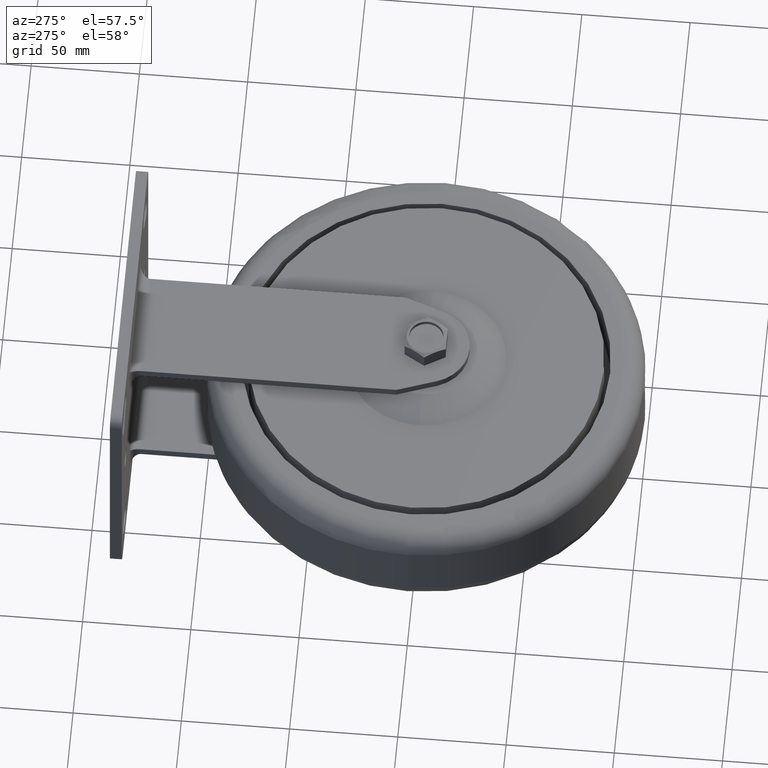
[diagram: clean part render]
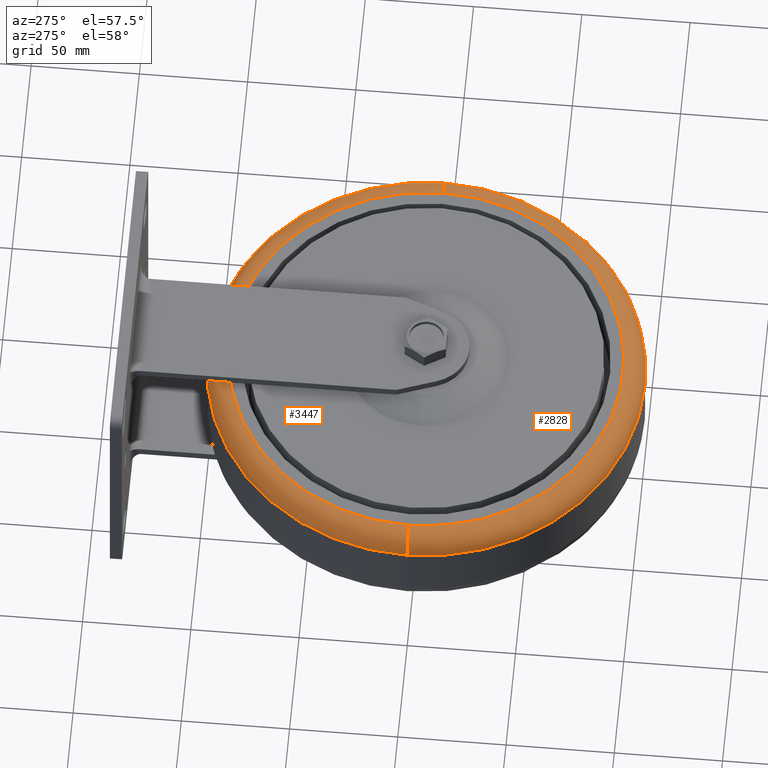
[diagram: same view with one multi-face feature highlighted, each face labeled with its STEP entity id]
A machine part, auxiliary view. The highlighted faces form ONE feature: a constant-radius fillet chain: 2 tangent blend faces with common blend radius 10 mm. The faces share edges in the B-rep.
Their STEP definitions:
[1] entity #2828 (Torus):
#51 = CARTESIAN_POINT ( 'NONE',  ( -91.00000000000001421, 1.175660927181459316E-14, 24.00000000000000000 ) ) ;
#96 = TOROIDAL_SURFACE ( 'NONE', #2683, 91.00000000000001421, 10.00000000000000000 ) ;
#113 = CARTESIAN_POINT ( 'NONE',  ( -91.00000000000001421, 1.114428587224091584E-14, 13.99999999999999822 ) ) ;
#117 = DIRECTION ( 'NONE',  ( 1.000000000000000000, 0.000000000000000000, 0.000000000000000000 ) ) ;
#215 = DIRECTION ( 'NONE',  ( 0.000000000000000000, 0.000000000000000000, 1.000000000000000000 ) ) ;
#268 = DIRECTION ( 'NONE',  ( 1.000000000000000000, 0.000000000000000000, 0.000000000000000000 ) ) ;
#584 = DIRECTION ( 'NONE',  ( 0.000000000000000000, 0.000000000000000000, 1.000000000000000000 ) ) ;
#655 = CARTESIAN_POINT ( 'NONE',  ( 0.000000000000000000, 0.000000000000000000, 13.99999999999999822 ) ) ;
#704 = ORIENTED_EDGE ( 'NONE', *, *, #3412, .T. ) ;
#1068 = ORIENTED_EDGE ( 'NONE', *, *, #3197, .F. ) ;
#1074 = CIRCLE ( 'NONE', #3583, 101.0000000000000000 ) ;
#1127 = FACE_OUTER_BOUND ( 'NONE', #3156, .T. ) ;
#1702 = CIRCLE ( 'NONE', #3135, 9.999999999999994671 ) ;
#1868 = CARTESIAN_POINT ( 'NONE',  ( 91.00000000000001421, 0.000000000000000000, 24.00000000000000000 ) ) ;
#1979 = CARTESIAN_POINT ( 'NONE',  ( 101.0000000000000000, 1.236893267138826732E-14, 13.99999999999999822 ) ) ;
#2028 = CIRCLE ( 'NONE', #2199, 91.00000000000001421 ) ;
#2145 = AXIS2_PLACEMENT_3D ( 'NONE', #2921, #4655, #2166 ) ;
#2166 = DIRECTION ( 'NONE',  ( 0.000000000000000000, 0.000000000000000000, -1.000000000000000000 ) ) ;
#2199 = AXIS2_PLACEMENT_3D ( 'NONE', #3940, #584, #117 ) ;
#2289 = DIRECTION ( 'NONE',  ( -1.000000000000000000, 1.224646799147354193E-16, 0.000000000000000000 ) ) ;
#2619 = DIRECTION ( 'NONE',  ( 1.224646799147353207E-16, 1.000000000000000000, -0.000000000000000000 ) ) ;
#2683 = AXIS2_PLACEMENT_3D ( 'NONE', #655, #215, #268 ) ;
#2749 = VERTEX_POINT ( 'NONE', #3179 ) ;
#2773 = EDGE_CURVE ( 'NONE', #5287, #2749, #1074, .T. ) ;
#2828 = ADVANCED_FACE ( 'NONE', ( #1127 ), #96, .T. ) ;
#2921 = CARTESIAN_POINT ( 'NONE',  ( 91.00000000000001421, 0.000000000000000000, 13.99999999999999822 ) ) ;
#2949 = CIRCLE ( 'NONE', #2145, 10.00000000000000000 ) ;
#3135 = AXIS2_PLACEMENT_3D ( 'NONE', #113, #2619, #2289 ) ;
#3156 = EDGE_LOOP ( 'NONE', ( #1068, #4481, #704, #4659 ) ) ;
#3179 = CARTESIAN_POINT ( 'NONE',  ( -101.0000000000000000, 0.000000000000000000, 13.99999999999999822 ) ) ;
#3197 = EDGE_CURVE ( 'NONE', #2749, #3977, #1702, .T. ) ;
#3207 = DIRECTION ( 'NONE',  ( -0.000000000000000000, -0.000000000000000000, -1.000000000000000000 ) ) ;
#3412 = EDGE_CURVE ( 'NONE', #5287, #3590, #2949, .T. ) ;
#3583 = AXIS2_PLACEMENT_3D ( 'NONE', #4853, #3207, #4488 ) ;
#3590 = VERTEX_POINT ( 'NONE', #1868 ) ;
#3940 = CARTESIAN_POINT ( 'NONE',  ( 0.000000000000000000, 0.000000000000000000, 24.00000000000000000 ) ) ;
#3977 = VERTEX_POINT ( 'NONE', #51 ) ;
#4481 = ORIENTED_EDGE ( 'NONE', *, *, #2773, .F. ) ;
#4488 = DIRECTION ( 'NONE',  ( 1.000000000000000000, 0.000000000000000000, 0.000000000000000000 ) ) ;
#4655 = DIRECTION ( 'NONE',  ( 0.000000000000000000, -1.000000000000000000, 0.000000000000000000 ) ) ;
#4659 = ORIENTED_EDGE ( 'NONE', *, *, #4932, .F. ) ;
#4853 = CARTESIAN_POINT ( 'NONE',  ( 0.000000000000000000, 0.000000000000000000, 13.99999999999999822 ) ) ;
#4932 = EDGE_CURVE ( 'NONE', #3977, #3590, #2028, .T. ) ;
#5287 = VERTEX_POINT ( 'NONE', #1979 ) ;
[2] entity #3447 (Torus):
#51 = CARTESIAN_POINT ( 'NONE',  ( -91.00000000000001421, 1.175660927181459316E-14, 24.00000000000000000 ) ) ;
#113 = CARTESIAN_POINT ( 'NONE',  ( -91.00000000000001421, 1.114428587224091584E-14, 13.99999999999999822 ) ) ;
#244 = AXIS2_PLACEMENT_3D ( 'NONE', #719, #1167, #2041 ) ;
#402 = ORIENTED_EDGE ( 'NONE', *, *, #3797, .F. ) ;
#719 = CARTESIAN_POINT ( 'NONE',  ( 0.000000000000000000, 0.000000000000000000, 24.00000000000000000 ) ) ;
#927 = EDGE_LOOP ( 'NONE', ( #2690, #2292, #402, #3720 ) ) ;
#1167 = DIRECTION ( 'NONE',  ( 0.000000000000000000, 0.000000000000000000, 1.000000000000000000 ) ) ;
#1210 = CIRCLE ( 'NONE', #244, 91.00000000000001421 ) ;
#1702 = CIRCLE ( 'NONE', #3135, 9.999999999999994671 ) ;
#1704 = CARTESIAN_POINT ( 'NONE',  ( 0.000000000000000000, 0.000000000000000000, 13.99999999999999822 ) ) ;
#1868 = CARTESIAN_POINT ( 'NONE',  ( 91.00000000000001421, 0.000000000000000000, 24.00000000000000000 ) ) ;
#1979 = CARTESIAN_POINT ( 'NONE',  ( 101.0000000000000000, 1.236893267138826732E-14, 13.99999999999999822 ) ) ;
#2041 = DIRECTION ( 'NONE',  ( 1.000000000000000000, 0.000000000000000000, 0.000000000000000000 ) ) ;
#2081 = AXIS2_PLACEMENT_3D ( 'NONE', #1704, #4743, #3850 ) ;
#2084 = FACE_OUTER_BOUND ( 'NONE', #927, .T. ) ;
#2145 = AXIS2_PLACEMENT_3D ( 'NONE', #2921, #4655, #2166 ) ;
#2166 = DIRECTION ( 'NONE',  ( 0.000000000000000000, 0.000000000000000000, -1.000000000000000000 ) ) ;
#2273 = EDGE_CURVE ( 'NONE', #2749, #5287, #4501, .T. ) ;
#2289 = DIRECTION ( 'NONE',  ( -1.000000000000000000, 1.224646799147354193E-16, 0.000000000000000000 ) ) ;
#2292 = ORIENTED_EDGE ( 'NONE', *, *, #3197, .T. ) ;
#2619 = DIRECTION ( 'NONE',  ( 1.224646799147353207E-16, 1.000000000000000000, -0.000000000000000000 ) ) ;
#2690 = ORIENTED_EDGE ( 'NONE', *, *, #2273, .F. ) ;
#2749 = VERTEX_POINT ( 'NONE', #3179 ) ;
#2857 = AXIS2_PLACEMENT_3D ( 'NONE', #4264, #4293, #3872 ) ;
#2921 = CARTESIAN_POINT ( 'NONE',  ( 91.00000000000001421, 0.000000000000000000, 13.99999999999999822 ) ) ;
#2949 = CIRCLE ( 'NONE', #2145, 10.00000000000000000 ) ;
#3135 = AXIS2_PLACEMENT_3D ( 'NONE', #113, #2619, #2289 ) ;
#3179 = CARTESIAN_POINT ( 'NONE',  ( -101.0000000000000000, 0.000000000000000000, 13.99999999999999822 ) ) ;
#3197 = EDGE_CURVE ( 'NONE', #2749, #3977, #1702, .T. ) ;
#3412 = EDGE_CURVE ( 'NONE', #5287, #3590, #2949, .T. ) ;
#3447 = ADVANCED_FACE ( 'NONE', ( #2084 ), #5271, .T. ) ;
#3590 = VERTEX_POINT ( 'NONE', #1868 ) ;
#3720 = ORIENTED_EDGE ( 'NONE', *, *, #3412, .F. ) ;
#3797 = EDGE_CURVE ( 'NONE', #3590, #3977, #1210, .T. ) ;
#3850 = DIRECTION ( 'NONE',  ( 1.000000000000000000, 0.000000000000000000, 0.000000000000000000 ) ) ;
#3872 = DIRECTION ( 'NONE',  ( 1.000000000000000000, 0.000000000000000000, 0.000000000000000000 ) ) ;
#3977 = VERTEX_POINT ( 'NONE', #51 ) ;
#4264 = CARTESIAN_POINT ( 'NONE',  ( 0.000000000000000000, 0.000000000000000000, 13.99999999999999822 ) ) ;
#4293 = DIRECTION ( 'NONE',  ( 0.000000000000000000, 0.000000000000000000, 1.000000000000000000 ) ) ;
#4501 = CIRCLE ( 'NONE', #2081, 101.0000000000000000 ) ;
#4655 = DIRECTION ( 'NONE',  ( 0.000000000000000000, -1.000000000000000000, 0.000000000000000000 ) ) ;
#4743 = DIRECTION ( 'NONE',  ( -0.000000000000000000, -0.000000000000000000, -1.000000000000000000 ) ) ;
#5271 = TOROIDAL_SURFACE ( 'NONE', #2857, 91.00000000000001421, 10.00000000000000000 ) ;
#5287 = VERTEX_POINT ( 'NONE', #1979 ) ;